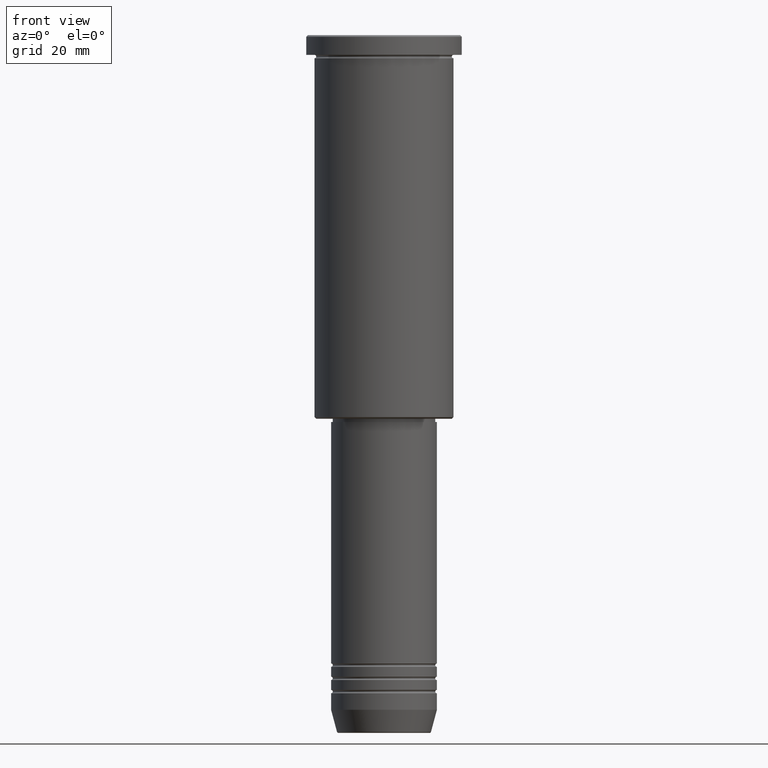
[diagram: clean part render]
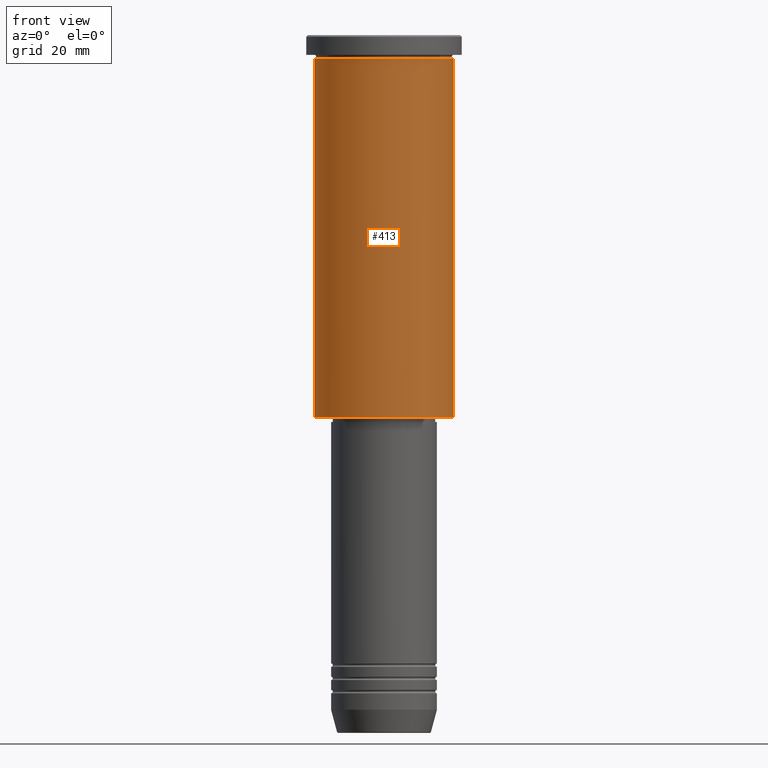
[diagram: same view with one face highlighted and labeled with its STEP entity id]
A machine part, front view. The second image highlights one B-rep face of the part: STEP entity #413.
In plain terms, the highlighted cylindrical surface (partial cylindrical patch) has radius 21 mm, axis along (-0, -0, 1).
Its self-contained STEP definition (entity closure, byte-faithful):
#81 = CARTESIAN_POINT ( 'NONE',  ( 21.00000000000000000, 0.000000000000000000, 0.000000000000000000 ) ) ;
#85 = CARTESIAN_POINT ( 'NONE',  ( 0.000000000000000000, 0.000000000000000000, -115.5000000000000426 ) ) ;
#101 = CARTESIAN_POINT ( 'NONE',  ( 0.000000000000000000, 0.000000000000000000, 0.000000000000000000 ) ) ;
#123 = EDGE_CURVE ( 'NONE', #291, #891, #1151, .T. ) ;
#130 = VERTEX_POINT ( 'NONE', #861 ) ;
#158 = CARTESIAN_POINT ( 'NONE',  ( -21.00000000000000000, 2.571758278209441661E-15, -115.5000000000000426 ) ) ;
#225 = DIRECTION ( 'NONE',  ( -0.000000000000000000, -0.000000000000000000, 1.000000000000000000 ) ) ;
#272 = CARTESIAN_POINT ( 'NONE',  ( 0.000000000000000000, 0.000000000000000000, -6.999999999999993783 ) ) ;
#274 = LINE ( 'NONE', #81, #894 ) ;
#276 = DIRECTION ( 'NONE',  ( 1.000000000000000000, 0.000000000000000000, 0.000000000000000000 ) ) ;
#291 = VERTEX_POINT ( 'NONE', #158 ) ;
#302 = EDGE_CURVE ( 'NONE', #130, #718, #274, .T. ) ;
#324 = AXIS2_PLACEMENT_3D ( 'NONE', #101, #652, #276 ) ;
#340 = CARTESIAN_POINT ( 'NONE',  ( -21.00000000000000000, 2.571758278209441661E-15, 0.000000000000000000 ) ) ;
#357 = EDGE_CURVE ( 'NONE', #291, #130, #1142, .T. ) ;
#367 = DIRECTION ( 'NONE',  ( -0.000000000000000000, -0.000000000000000000, 1.000000000000000000 ) ) ;
#390 = DIRECTION ( 'NONE',  ( -1.000000000000000000, 0.000000000000000000, 0.000000000000000000 ) ) ;
#397 = FACE_OUTER_BOUND ( 'NONE', #1182, .T. ) ;
#413 = ADVANCED_FACE ( 'NONE', ( #397 ), #1105, .T. ) ;
#442 = CARTESIAN_POINT ( 'NONE',  ( 21.00000000000000000, 0.000000000000000000, -6.999999999999993783 ) ) ;
#512 = ORIENTED_EDGE ( 'NONE', *, *, #662, .F. ) ;
#634 = CIRCLE ( 'NONE', #1030, 21.00000000000000000 ) ;
#652 = DIRECTION ( 'NONE',  ( -0.000000000000000000, -0.000000000000000000, 1.000000000000000000 ) ) ;
#662 = EDGE_CURVE ( 'NONE', #891, #718, #634, .T. ) ;
#718 = VERTEX_POINT ( 'NONE', #442 ) ;
#726 = VECTOR ( 'NONE', #225, 1000.000000000000000 ) ;
#799 = DIRECTION ( 'NONE',  ( -0.000000000000000000, -0.000000000000000000, 1.000000000000000000 ) ) ;
#803 = AXIS2_PLACEMENT_3D ( 'NONE', #85, #851, #390 ) ;
#851 = DIRECTION ( 'NONE',  ( -0.000000000000000000, -0.000000000000000000, 1.000000000000000000 ) ) ;
#861 = CARTESIAN_POINT ( 'NONE',  ( 21.00000000000000000, 0.000000000000000000, -115.5000000000000426 ) ) ;
#891 = VERTEX_POINT ( 'NONE', #920 ) ;
#894 = VECTOR ( 'NONE', #367, 1000.000000000000000 ) ;
#920 = CARTESIAN_POINT ( 'NONE',  ( -21.00000000000000000, 2.571758278209441661E-15, -6.999999999999993783 ) ) ;
#991 = ORIENTED_EDGE ( 'NONE', *, *, #123, .F. ) ;
#1030 = AXIS2_PLACEMENT_3D ( 'NONE', #272, #799, #1171 ) ;
#1094 = ORIENTED_EDGE ( 'NONE', *, *, #302, .T. ) ;
#1105 = CYLINDRICAL_SURFACE ( 'NONE', #324, 21.00000000000000000 ) ;
#1129 = ORIENTED_EDGE ( 'NONE', *, *, #357, .T. ) ;
#1142 = CIRCLE ( 'NONE', #803, 21.00000000000000000 ) ;
#1151 = LINE ( 'NONE', #340, #726 ) ;
#1171 = DIRECTION ( 'NONE',  ( 1.000000000000000000, 0.000000000000000000, 0.000000000000000000 ) ) ;
#1182 = EDGE_LOOP ( 'NONE', ( #991, #1129, #1094, #512 ) ) ;